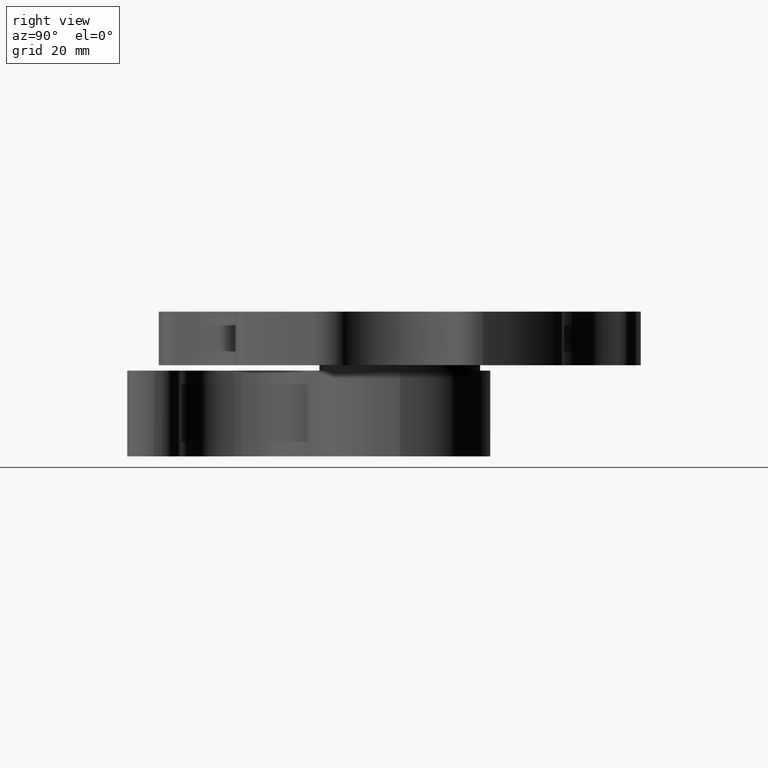
[diagram: clean part render]
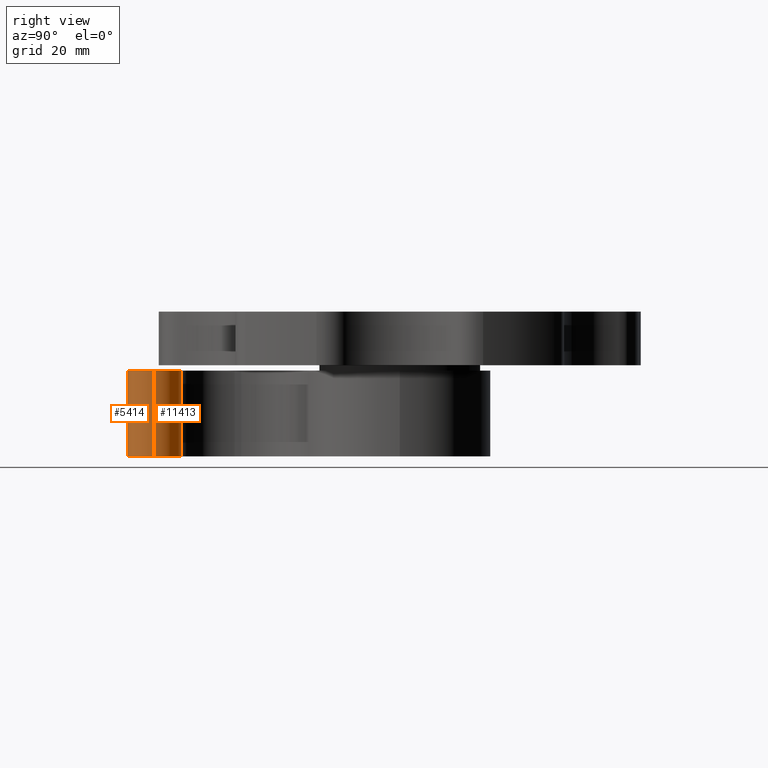
[diagram: same view with one multi-face feature highlighted, each face labeled with its STEP entity id]
A machine part, right view. The highlighted faces form ONE feature: a constant-radius fillet chain: 2 tangent blend faces with common blend radius 5 mm. The faces share edges in the B-rep.
Their STEP definitions:
[1] entity #11413 (Cylinder):
#36 = CARTESIAN_POINT ( 'NONE',  ( 4.199999999999981500, -45.79999999999999000, 0.0000000000000000000 ) ) ;
#610 = EDGE_CURVE ( 'NONE', #3644, #13509, #10063, .T. ) ;
#1547 = DIRECTION ( 'NONE',  ( -0.0000000000000000000, 0.0000000000000000000, 1.000000000000000000 ) ) ;
#1593 = CARTESIAN_POINT ( 'NONE',  ( 4.199999999999981500, -45.79999999999999000, -16.00000000000000000 ) ) ;
#2961 = ORIENTED_EDGE ( 'NONE', *, *, #9801, .T. ) ;
#3403 = ORIENTED_EDGE ( 'NONE', *, *, #7792, .F. ) ;
#3431 = FACE_OUTER_BOUND ( 'NONE', #6581, .T. ) ;
#3644 = VERTEX_POINT ( 'NONE', #4051 ) ;
#3739 = VECTOR ( 'NONE', #14809, 1000.000000000000000 ) ;
#4051 = CARTESIAN_POINT ( 'NONE',  ( 9.199999999999979700, -45.79999999999999000, 0.0000000000000000000 ) ) ;
#4945 = CYLINDRICAL_SURFACE ( 'NONE', #7365, 4.999999999999997300 ) ;
#5124 = LINE ( 'NONE', #7426, #7563 ) ;
#6081 = DIRECTION ( 'NONE',  ( 0.0000000000000000000, 0.0000000000000000000, 1.000000000000000000 ) ) ;
#6581 = EDGE_LOOP ( 'NONE', ( #3403, #2961, #9865, #14522 ) ) ;
#6700 = DIRECTION ( 'NONE',  ( 1.000000000000000000, 0.0000000000000000000, 0.0000000000000000000 ) ) ;
#7365 = AXIS2_PLACEMENT_3D ( 'NONE', #10432, #9164, #6700 ) ;
#7426 = CARTESIAN_POINT ( 'NONE',  ( 9.199999999999979700, -45.79999999999999000, -16.00000000000000000 ) ) ;
#7563 = VECTOR ( 'NONE', #6081, 1000.000000000000000 ) ;
#7792 = EDGE_CURVE ( 'NONE', #14933, #3644, #5124, .T. ) ;
#8452 = DIRECTION ( 'NONE',  ( 1.000000000000000000, 0.0000000000000000000, 0.0000000000000000000 ) ) ;
#9164 = DIRECTION ( 'NONE',  ( 0.0000000000000000000, 0.0000000000000000000, 1.000000000000000000 ) ) ;
#9437 = VERTEX_POINT ( 'NONE', #11128 ) ;
#9801 = EDGE_CURVE ( 'NONE', #14933, #9437, #10522, .T. ) ;
#9865 = ORIENTED_EDGE ( 'NONE', *, *, #14878, .T. ) ;
#10063 = CIRCLE ( 'NONE', #14239, 4.999999999999997300 ) ;
#10432 = CARTESIAN_POINT ( 'NONE',  ( 4.199999999999981500, -45.79999999999999000, -16.00000000000000000 ) ) ;
#10522 = CIRCLE ( 'NONE', #10747, 4.999999999999997300 ) ;
#10747 = AXIS2_PLACEMENT_3D ( 'NONE', #1593, #1547, #13569 ) ;
#11128 = CARTESIAN_POINT ( 'NONE',  ( 4.199999999999978000, -40.79999999999998300, -16.00000000000000000 ) ) ;
#11413 = ADVANCED_FACE ( 'NONE', ( #3431 ), #4945, .T. ) ;
#11892 = DIRECTION ( 'NONE',  ( -0.0000000000000000000, 0.0000000000000000000, 1.000000000000000000 ) ) ;
#12751 = CARTESIAN_POINT ( 'NONE',  ( 9.199999999999979700, -45.79999999999999000, -16.00000000000000000 ) ) ;
#13509 = VERTEX_POINT ( 'NONE', #15237 ) ;
#13568 = LINE ( 'NONE', #14922, #3739 ) ;
#13569 = DIRECTION ( 'NONE',  ( 1.000000000000000000, 0.0000000000000000000, 0.0000000000000000000 ) ) ;
#14239 = AXIS2_PLACEMENT_3D ( 'NONE', #36, #11892, #8452 ) ;
#14522 = ORIENTED_EDGE ( 'NONE', *, *, #610, .F. ) ;
#14809 = DIRECTION ( 'NONE',  ( 0.0000000000000000000, 0.0000000000000000000, 1.000000000000000000 ) ) ;
#14878 = EDGE_CURVE ( 'NONE', #9437, #13509, #13568, .T. ) ;
#14922 = CARTESIAN_POINT ( 'NONE',  ( 4.199999999999978000, -40.79999999999998300, -16.00000000000000000 ) ) ;
#14933 = VERTEX_POINT ( 'NONE', #12751 ) ;
#15237 = CARTESIAN_POINT ( 'NONE',  ( 4.199999999999978000, -40.79999999999998300, 0.0000000000000000000 ) ) ;
[2] entity #5414 (Cylinder):
#380 = DIRECTION ( 'NONE',  ( 1.000000000000000000, 0.0000000000000000000, 0.0000000000000000000 ) ) ;
#1784 = CARTESIAN_POINT ( 'NONE',  ( 4.199999999999981500, -45.79999999999999000, 0.0000000000000000000 ) ) ;
#2623 = CIRCLE ( 'NONE', #8952, 4.999999999999997300 ) ;
#3020 = CYLINDRICAL_SURFACE ( 'NONE', #10674, 4.999999999999997300 ) ;
#3644 = VERTEX_POINT ( 'NONE', #4051 ) ;
#3843 = VERTEX_POINT ( 'NONE', #11531 ) ;
#4051 = CARTESIAN_POINT ( 'NONE',  ( 9.199999999999979700, -45.79999999999999000, 0.0000000000000000000 ) ) ;
#4378 = ORIENTED_EDGE ( 'NONE', *, *, #5350, .F. ) ;
#5124 = LINE ( 'NONE', #7426, #7563 ) ;
#5350 = EDGE_CURVE ( 'NONE', #14163, #3843, #9231, .T. ) ;
#5414 = ADVANCED_FACE ( 'NONE', ( #13965 ), #3020, .T. ) ;
#5765 = EDGE_LOOP ( 'NONE', ( #7830, #13301, #13270, #4378 ) ) ;
#6081 = DIRECTION ( 'NONE',  ( 0.0000000000000000000, 0.0000000000000000000, 1.000000000000000000 ) ) ;
#7426 = CARTESIAN_POINT ( 'NONE',  ( 9.199999999999979700, -45.79999999999999000, -16.00000000000000000 ) ) ;
#7471 = DIRECTION ( 'NONE',  ( 1.000000000000000000, 0.0000000000000000000, 0.0000000000000000000 ) ) ;
#7563 = VECTOR ( 'NONE', #6081, 1000.000000000000000 ) ;
#7639 = DIRECTION ( 'NONE',  ( 0.0000000000000000000, 0.0000000000000000000, 1.000000000000000000 ) ) ;
#7643 = DIRECTION ( 'NONE',  ( -0.0000000000000000000, 0.0000000000000000000, 1.000000000000000000 ) ) ;
#7792 = EDGE_CURVE ( 'NONE', #14933, #3644, #5124, .T. ) ;
#7830 = ORIENTED_EDGE ( 'NONE', *, *, #7882, .T. ) ;
#7882 = EDGE_CURVE ( 'NONE', #14163, #14933, #13230, .T. ) ;
#8759 = CARTESIAN_POINT ( 'NONE',  ( 4.199999999999981500, -45.79999999999999000, -16.00000000000000000 ) ) ;
#8952 = AXIS2_PLACEMENT_3D ( 'NONE', #1784, #11286, #12556 ) ;
#9231 = LINE ( 'NONE', #14203, #15277 ) ;
#10674 = AXIS2_PLACEMENT_3D ( 'NONE', #8759, #7639, #7471 ) ;
#11286 = DIRECTION ( 'NONE',  ( -0.0000000000000000000, 0.0000000000000000000, 1.000000000000000000 ) ) ;
#11531 = CARTESIAN_POINT ( 'NONE',  ( 4.199999999999978000, -50.79999999999997600, 0.0000000000000000000 ) ) ;
#12048 = AXIS2_PLACEMENT_3D ( 'NONE', #12452, #7643, #380 ) ;
#12131 = CARTESIAN_POINT ( 'NONE',  ( 4.199999999999978000, -50.79999999999997600, -16.00000000000000000 ) ) ;
#12452 = CARTESIAN_POINT ( 'NONE',  ( 4.199999999999981500, -45.79999999999999000, -16.00000000000000000 ) ) ;
#12556 = DIRECTION ( 'NONE',  ( 1.000000000000000000, 0.0000000000000000000, 0.0000000000000000000 ) ) ;
#12751 = CARTESIAN_POINT ( 'NONE',  ( 9.199999999999979700, -45.79999999999999000, -16.00000000000000000 ) ) ;
#13230 = CIRCLE ( 'NONE', #12048, 4.999999999999997300 ) ;
#13270 = ORIENTED_EDGE ( 'NONE', *, *, #14328, .F. ) ;
#13301 = ORIENTED_EDGE ( 'NONE', *, *, #7792, .T. ) ;
#13965 = FACE_OUTER_BOUND ( 'NONE', #5765, .T. ) ;
#14163 = VERTEX_POINT ( 'NONE', #12131 ) ;
#14203 = CARTESIAN_POINT ( 'NONE',  ( 4.199999999999978000, -50.79999999999997600, -16.00000000000000000 ) ) ;
#14328 = EDGE_CURVE ( 'NONE', #3843, #3644, #2623, .T. ) ;
#14933 = VERTEX_POINT ( 'NONE', #12751 ) ;
#15178 = DIRECTION ( 'NONE',  ( 0.0000000000000000000, 0.0000000000000000000, 1.000000000000000000 ) ) ;
#15277 = VECTOR ( 'NONE', #15178, 1000.000000000000000 ) ;